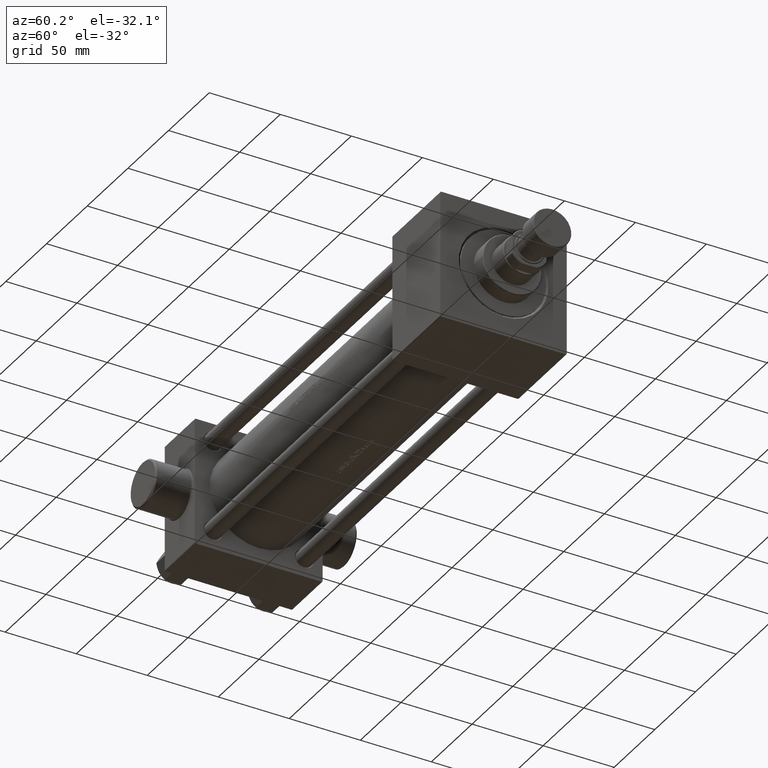
[diagram: clean part render]
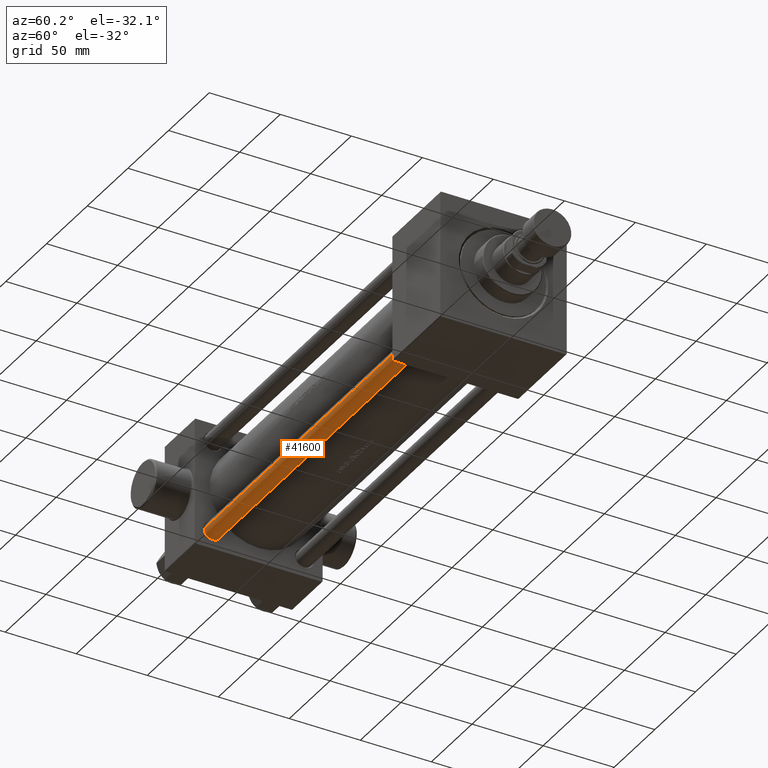
[diagram: same view with one face highlighted and labeled with its STEP entity id]
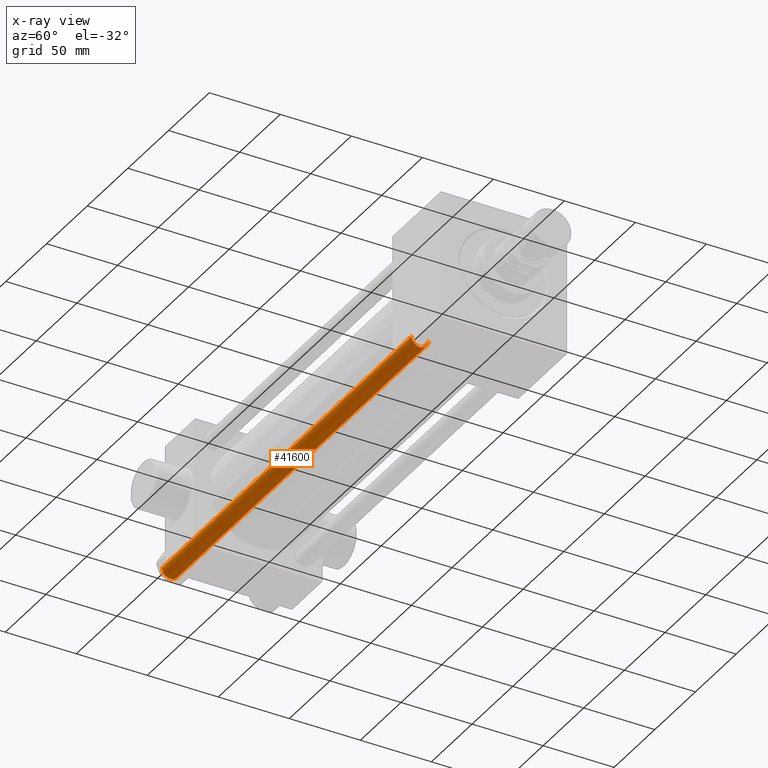
[diagram: x-ray of the same camera — body ghosted, the highlighted face saturated]
A machine part, auxiliary view. The second image highlights one B-rep face of the part: STEP entity #41600.
The next image is the same camera in x-ray: the body ghosted, the highlighted face saturated — about 0% of this face is hidden behind the body in this view.
In plain terms, the highlighted cylindrical surface (edge-blend (fillet) strip) has radius 6 mm, axis along (-1, 0, 0).
Its self-contained STEP definition (entity closure, byte-faithful):
#66 = VERTEX_POINT ( 'NONE', #8984 ) ;
#3204 = DIRECTION ( 'NONE',  ( -0.000000000000000000, -0.000000000000000000, -1.000000000000000000 ) ) ;
#3644 = DIRECTION ( 'NONE',  ( -0.000000000000000000, -0.000000000000000000, 1.000000000000000000 ) ) ;
#5873 = CARTESIAN_POINT ( 'NONE',  ( 6.000000000000000888, 7.347880794884120722E-16, 307.4999999999999432 ) ) ;
#5915 = EDGE_CURVE ( 'NONE', #46447, #26717, #16872, .T. ) ;
#6552 = CYLINDRICAL_SURFACE ( 'NONE', #41975, 6.000000000000000888 ) ;
#8984 = CARTESIAN_POINT ( 'NONE',  ( -6.000000000000000888, 0.000000000000000000, 307.4999999999999432 ) ) ;
#9300 = DIRECTION ( 'NONE',  ( 1.000000000000000000, 0.000000000000000000, 0.000000000000000000 ) ) ;
#9558 = AXIS2_PLACEMENT_3D ( 'NONE', #23501, #26821, #9300 ) ;
#9865 = FACE_OUTER_BOUND ( 'NONE', #35219, .T. ) ;
#10059 = LINE ( 'NONE', #31817, #41961 ) ;
#10505 = CARTESIAN_POINT ( 'NONE',  ( 0.000000000000000000, 0.000000000000000000, 0.5000000000000559552 ) ) ;
#12061 = VERTEX_POINT ( 'NONE', #5873 ) ;
#13093 = AXIS2_PLACEMENT_3D ( 'NONE', #10505, #3644, #21858 ) ;
#13413 = ORIENTED_EDGE ( 'NONE', *, *, #5915, .T. ) ;
#14892 = CARTESIAN_POINT ( 'NONE',  ( 6.000000000000000888, 7.347880794884120722E-16, 308.0000000000000000 ) ) ;
#16809 = EDGE_CURVE ( 'NONE', #66, #46447, #10059, .T. ) ;
#16872 = CIRCLE ( 'NONE', #13093, 6.000000000000000888 ) ;
#16974 = EDGE_CURVE ( 'NONE', #12061, #66, #43512, .T. ) ;
#17434 = DIRECTION ( 'NONE',  ( -0.000000000000000000, -0.000000000000000000, -1.000000000000000000 ) ) ;
#20996 = CARTESIAN_POINT ( 'NONE',  ( 0.000000000000000000, 0.000000000000000000, 308.0000000000000000 ) ) ;
#21858 = DIRECTION ( 'NONE',  ( 1.000000000000000000, 0.000000000000000000, 0.000000000000000000 ) ) ;
#23344 = ORIENTED_EDGE ( 'NONE', *, *, #44115, .F. ) ;
#23501 = CARTESIAN_POINT ( 'NONE',  ( 0.000000000000000000, 0.000000000000000000, 307.4999999999999432 ) ) ;
#25997 = LINE ( 'NONE', #14892, #30711 ) ;
#26717 = VERTEX_POINT ( 'NONE', #42186 ) ;
#26821 = DIRECTION ( 'NONE',  ( 0.000000000000000000, 0.000000000000000000, -1.000000000000000000 ) ) ;
#27630 = ORIENTED_EDGE ( 'NONE', *, *, #16809, .T. ) ;
#29313 = DIRECTION ( 'NONE',  ( -0.000000000000000000, -0.000000000000000000, -1.000000000000000000 ) ) ;
#30711 = VECTOR ( 'NONE', #29313, 1000.000000000000000 ) ;
#31817 = CARTESIAN_POINT ( 'NONE',  ( -6.000000000000000888, 0.000000000000000000, 308.0000000000000000 ) ) ;
#31853 = DIRECTION ( 'NONE',  ( -1.000000000000000000, 0.000000000000000000, 0.000000000000000000 ) ) ;
#35219 = EDGE_LOOP ( 'NONE', ( #23344, #40882, #27630, #13413 ) ) ;
#40882 = ORIENTED_EDGE ( 'NONE', *, *, #16974, .T. ) ;
#41600 = ADVANCED_FACE ( 'NONE', ( #9865 ), #6552, .T. ) ;
#41961 = VECTOR ( 'NONE', #3204, 1000.000000000000000 ) ;
#41975 = AXIS2_PLACEMENT_3D ( 'NONE', #20996, #17434, #31853 ) ;
#42186 = CARTESIAN_POINT ( 'NONE',  ( 6.000000000000000888, 7.347880794884120722E-16, 0.5000000000000559552 ) ) ;
#43512 = CIRCLE ( 'NONE', #9558, 6.000000000000000888 ) ;
#44115 = EDGE_CURVE ( 'NONE', #12061, #26717, #25997, .T. ) ;
#46447 = VERTEX_POINT ( 'NONE', #46456 ) ;
#46456 = CARTESIAN_POINT ( 'NONE',  ( -6.000000000000000888, 0.000000000000000000, 0.5000000000000559552 ) ) ;